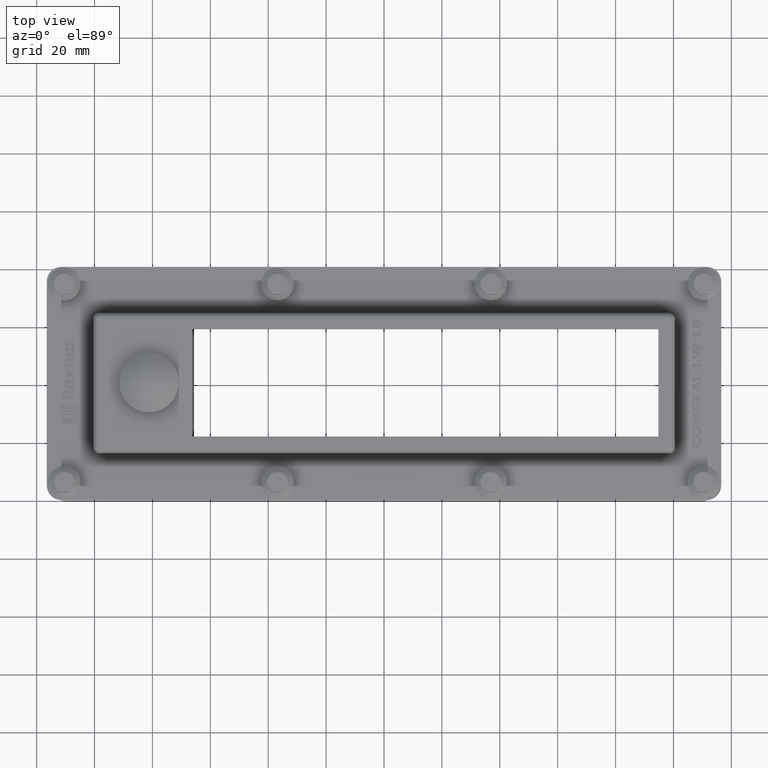
[diagram: clean part render]
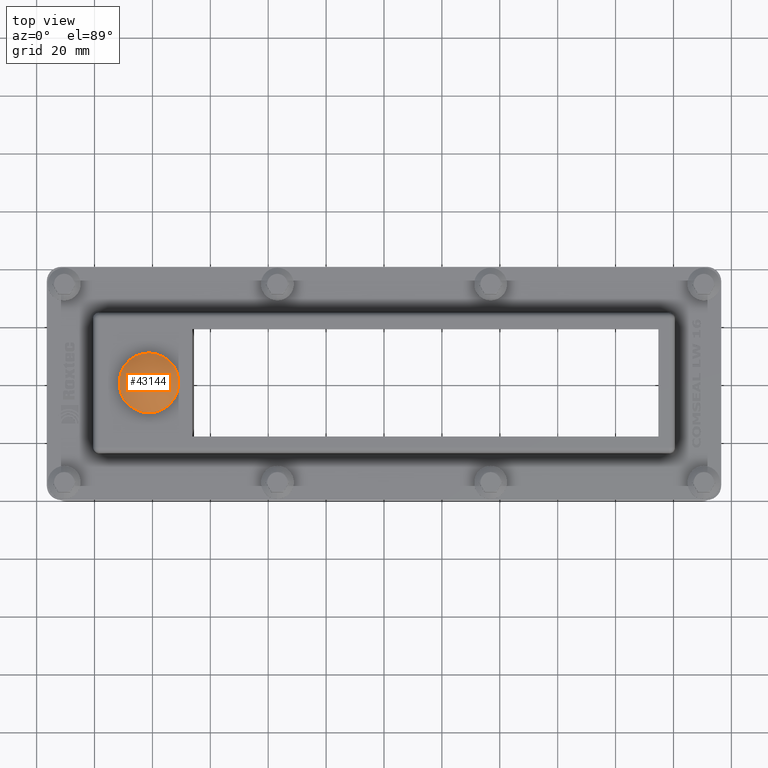
[diagram: same view with one face highlighted and labeled with its STEP entity id]
A machine part, top view. The second image highlights one B-rep face of the part: STEP entity #43144.
In plain terms, the highlighted spherical surface has radius 16 mm.
Its self-contained STEP definition (entity closure, byte-faithful):
#43128=CARTESIAN_POINT('',(11.120000000000005,0.0,0.0));
#43129=DIRECTION('',(0.0,0.0,1.0));
#43130=DIRECTION('',(1.0,0.0,0.0));
#43131=AXIS2_PLACEMENT_3D('',#43128,#43129,#43130);
#43132=SPHERICAL_SURFACE('',#43131,16.000000000000004);
#43133=CARTESIAN_POINT('',(-1.102699169986955,10.325000000000003,0.0));
#43134=VERTEX_POINT('',#43133);
#43135=CARTESIAN_POINT('',(-1.102699169986954,-2.714552E-032,0.0));
#43136=DIRECTION('',(1.0,0.0,0.0));
#43137=DIRECTION('',(0.0,1.0,0.0));
#43138=AXIS2_PLACEMENT_3D('',#43135,#43136,#43137);
#43139=CIRCLE('',#43138,10.325000000000003);
#43140=EDGE_CURVE('',#43134,#43134,#43139,.T.);
#43141=ORIENTED_EDGE('',*,*,#43140,.F.);
#43142=EDGE_LOOP('',(#43141));
#43143=FACE_OUTER_BOUND('',#43142,.T.);
#43144=ADVANCED_FACE('',(#43143),#43132,.T.);